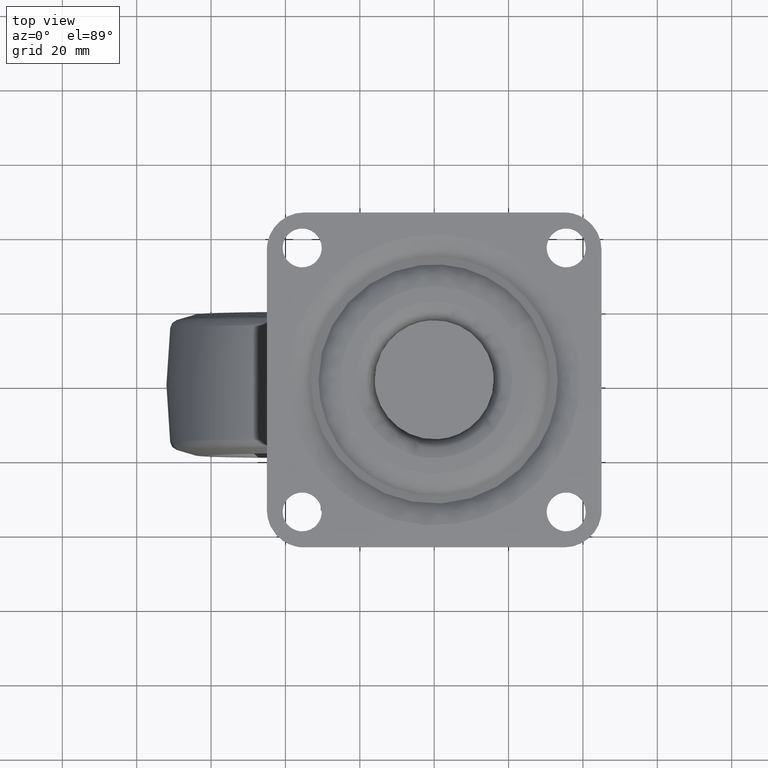
[diagram: clean part render]
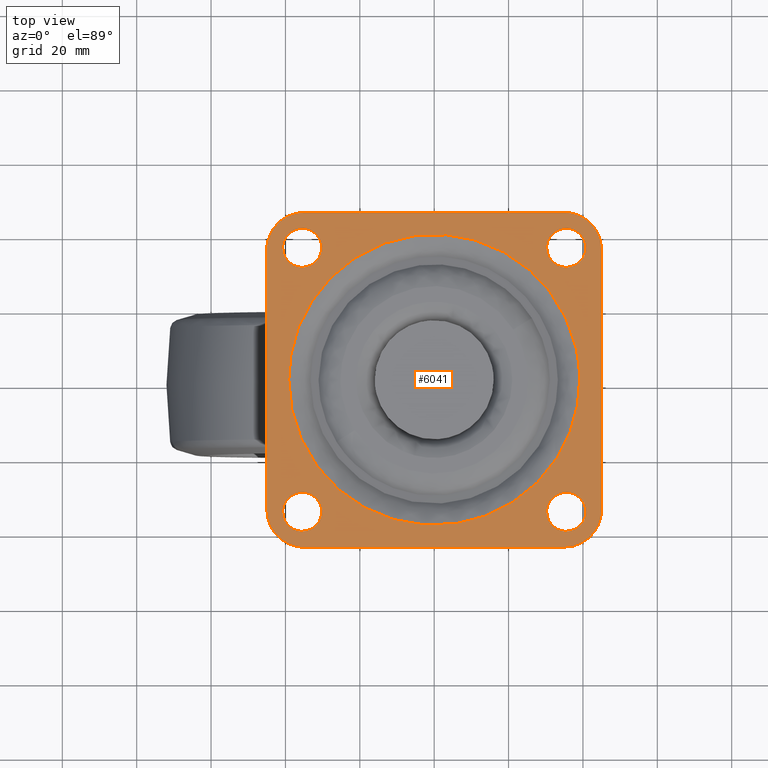
[diagram: same view with one face highlighted and labeled with its STEP entity id]
A machine part, top view. The second image highlights one B-rep face of the part: STEP entity #6041.
In plain terms, the highlighted face is a freeform B-spline surface patch.
Its self-contained STEP definition (entity closure, byte-faithful):
#4381=CARTESIAN_POINT('',(-35.820504832809881,30.259792308300600,-8.326673E-017));
#4382=VERTEX_POINT('',#4381);
#4388=CARTESIAN_POINT('',(-30.250000000000000,35.500000000000000,0.0));
#4389=VERTEX_POINT('',#4388);
#4390=CARTESIAN_POINT('',(-35.820504832809881,30.259792308300590,0.0));
#4391=CARTESIAN_POINT('',(-35.660402007443885,30.249999999999993,0.0));
#4392=CARTESIAN_POINT('',(-35.500000000000000,30.250000000000000,0.0));
#4393=CARTESIAN_POINT('',(-30.249999999999986,30.249999999999986,0.0));
#4394=CARTESIAN_POINT('',(-30.250000000000000,35.500000000000000,0.0));
#4402=(BOUNDED_CURVE()B_SPLINE_CURVE(2,(#4390,#4391,#4392,#4393,#4394),.UNSPECIFIED.,.F.,.U.)B_SPLINE_CURVE_WITH_KNOTS((3,2,3),(0.239332962233674,0.250000000000000,0.500000000000000),.UNSPECIFIED.)CURVE()GEOMETRIC_REPRESENTATION_ITEM()RATIONAL_B_SPLINE_CURVE((0.976072041655426,0.987502787893665,1.0,0.707106781186547,1.0))REPRESENTATION_ITEM(''));
#4403=EDGE_CURVE('',#4382,#4389,#4402,.T.);
#4405=CARTESIAN_POINT('',(-35.179495167190119,40.740207691699403,-8.326673E-017));
#4406=VERTEX_POINT('',#4405);
#4407=CARTESIAN_POINT('',(-30.250000000000000,35.500000000000000,0.0));
#4408=CARTESIAN_POINT('',(-30.249999999999989,40.438706851017059,0.0));
#4409=CARTESIAN_POINT('',(-35.179495167190112,40.740207691699389,0.0));
#4417=(BOUNDED_CURVE()B_SPLINE_CURVE(2,(#4407,#4408,#4409),.UNSPECIFIED.,.F.,.U.)B_SPLINE_CURVE_WITH_KNOTS((3,3),(0.500000000000000,0.739332962233674),.UNSPECIFIED.)CURVE()GEOMETRIC_REPRESENTATION_ITEM()RATIONAL_B_SPLINE_CURVE((1.0,0.719603993292882,0.976072041655426))REPRESENTATION_ITEM(''));
#4418=EDGE_CURVE('',#4389,#4406,#4417,.T.);
#4492=CARTESIAN_POINT('',(-40.749999999999993,35.500000000000000,0.0));
#4493=VERTEX_POINT('',#4492);
#4494=CARTESIAN_POINT('',(-35.179495167190112,40.740207691699389,0.0));
#4495=CARTESIAN_POINT('',(-35.339597992556115,40.749999999999993,0.0));
#4496=CARTESIAN_POINT('',(-35.500000000000000,40.749999999999993,0.0));
#4497=CARTESIAN_POINT('',(-40.749999999999986,40.749999999999986,0.0));
#4498=CARTESIAN_POINT('',(-40.749999999999993,35.500000000000000,0.0));
#4506=(BOUNDED_CURVE()B_SPLINE_CURVE(2,(#4494,#4495,#4496,#4497,#4498),.UNSPECIFIED.,.F.,.U.)B_SPLINE_CURVE_WITH_KNOTS((3,2,3),(0.739332962233674,0.750000000000000,1.0),.UNSPECIFIED.)CURVE()GEOMETRIC_REPRESENTATION_ITEM()RATIONAL_B_SPLINE_CURVE((0.976072041655426,0.987502787893665,1.0,0.707106781186547,1.0))REPRESENTATION_ITEM(''));
#4507=EDGE_CURVE('',#4406,#4493,#4506,.T.);
#4509=CARTESIAN_POINT('',(-40.749999999999993,35.500000000000000,0.0));
#4510=CARTESIAN_POINT('',(-40.749999999999993,30.561293148982926,0.0));
#4511=CARTESIAN_POINT('',(-35.820504832809881,30.259792308300600,0.0));
#4519=(BOUNDED_CURVE()B_SPLINE_CURVE(2,(#4509,#4510,#4511),.UNSPECIFIED.,.F.,.U.)B_SPLINE_CURVE_WITH_KNOTS((3,3),(0.0,0.239332962233674),.UNSPECIFIED.)CURVE()GEOMETRIC_REPRESENTATION_ITEM()RATIONAL_B_SPLINE_CURVE((1.0,0.719603993292883,0.976072041655426))REPRESENTATION_ITEM(''));
#4520=EDGE_CURVE('',#4493,#4382,#4519,.T.);
#4563=CARTESIAN_POINT('',(35.179495167190119,30.259792308300600,-8.326673E-017));
#4564=VERTEX_POINT('',#4563);
#4570=CARTESIAN_POINT('',(40.749999999999993,35.500000000000000,0.0));
#4571=VERTEX_POINT('',#4570);
#4572=CARTESIAN_POINT('',(35.179495167190119,30.259792308300600,0.0));
#4573=CARTESIAN_POINT('',(35.339597992556108,30.249999999999989,0.0));
#4574=CARTESIAN_POINT('',(35.500000000000000,30.250000000000000,0.0));
#4575=CARTESIAN_POINT('',(40.749999999999986,30.249999999999986,0.0));
#4576=CARTESIAN_POINT('',(40.749999999999993,35.500000000000000,0.0));
#4584=(BOUNDED_CURVE()B_SPLINE_CURVE(2,(#4572,#4573,#4574,#4575,#4576),.UNSPECIFIED.,.F.,.U.)B_SPLINE_CURVE_WITH_KNOTS((3,2,3),(0.239332962233675,0.250000000000000,0.500000000000000),.UNSPECIFIED.)CURVE()GEOMETRIC_REPRESENTATION_ITEM()RATIONAL_B_SPLINE_CURVE((0.976072041655426,0.987502787893665,1.0,0.707106781186547,1.0))REPRESENTATION_ITEM(''));
#4585=EDGE_CURVE('',#4564,#4571,#4584,.T.);
#4587=CARTESIAN_POINT('',(35.820504832809867,40.740207691699403,-8.326673E-017));
#4588=VERTEX_POINT('',#4587);
#4589=CARTESIAN_POINT('',(40.749999999999993,35.500000000000000,0.0));
#4590=CARTESIAN_POINT('',(40.749999999999986,40.438706851017052,0.0));
#4591=CARTESIAN_POINT('',(35.820504832809874,40.740207691699396,0.0));
#4599=(BOUNDED_CURVE()B_SPLINE_CURVE(2,(#4589,#4590,#4591),.UNSPECIFIED.,.F.,.U.)B_SPLINE_CURVE_WITH_KNOTS((3,3),(0.500000000000000,0.739332962233675),.UNSPECIFIED.)CURVE()GEOMETRIC_REPRESENTATION_ITEM()RATIONAL_B_SPLINE_CURVE((1.0,0.719603993292882,0.976072041655427))REPRESENTATION_ITEM(''));
#4600=EDGE_CURVE('',#4571,#4588,#4599,.T.);
#4674=CARTESIAN_POINT('',(30.250000000000000,35.500000000000000,0.0));
#4675=VERTEX_POINT('',#4674);
#4676=CARTESIAN_POINT('',(35.820504832809874,40.740207691699396,0.0));
#4677=CARTESIAN_POINT('',(35.660402007443885,40.749999999999993,0.0));
#4678=CARTESIAN_POINT('',(35.500000000000000,40.749999999999993,0.0));
#4679=CARTESIAN_POINT('',(30.249999999999986,40.749999999999986,0.0));
#4680=CARTESIAN_POINT('',(30.250000000000000,35.500000000000000,0.0));
#4688=(BOUNDED_CURVE()B_SPLINE_CURVE(2,(#4676,#4677,#4678,#4679,#4680),.UNSPECIFIED.,.F.,.U.)B_SPLINE_CURVE_WITH_KNOTS((3,2,3),(0.739332962233675,0.750000000000000,1.0),.UNSPECIFIED.)CURVE()GEOMETRIC_REPRESENTATION_ITEM()RATIONAL_B_SPLINE_CURVE((0.976072041655427,0.987502787893665,1.0,0.707106781186547,1.0))REPRESENTATION_ITEM(''));
#4689=EDGE_CURVE('',#4588,#4675,#4688,.T.);
#4691=CARTESIAN_POINT('',(30.250000000000000,35.500000000000000,0.0));
#4692=CARTESIAN_POINT('',(30.249999999999996,30.561293148982923,0.0));
#4693=CARTESIAN_POINT('',(35.179495167190112,30.259792308300597,0.0));
#4701=(BOUNDED_CURVE()B_SPLINE_CURVE(2,(#4691,#4692,#4693),.UNSPECIFIED.,.F.,.U.)B_SPLINE_CURVE_WITH_KNOTS((3,3),(0.0,0.239332962233675),.UNSPECIFIED.)CURVE()GEOMETRIC_REPRESENTATION_ITEM()RATIONAL_B_SPLINE_CURVE((1.0,0.719603993292882,0.976072041655427))REPRESENTATION_ITEM(''));
#4702=EDGE_CURVE('',#4675,#4564,#4701,.T.);
#4745=CARTESIAN_POINT('',(35.179495167190119,-40.740207691699403,-8.326673E-017));
#4746=VERTEX_POINT('',#4745);
#4752=CARTESIAN_POINT('',(40.749999999999993,-35.500000000000000,0.0));
#4753=VERTEX_POINT('',#4752);
#4754=CARTESIAN_POINT('',(35.179495167190112,-40.740207691699396,0.0));
#4755=CARTESIAN_POINT('',(35.339597992556122,-40.750000000000000,0.0));
#4756=CARTESIAN_POINT('',(35.500000000000000,-40.749999999999993,0.0));
#4757=CARTESIAN_POINT('',(40.749999999999986,-40.749999999999986,0.0));
#4758=CARTESIAN_POINT('',(40.749999999999993,-35.500000000000000,0.0));
#4766=(BOUNDED_CURVE()B_SPLINE_CURVE(2,(#4754,#4755,#4756,#4757,#4758),.UNSPECIFIED.,.F.,.U.)B_SPLINE_CURVE_WITH_KNOTS((3,2,3),(0.239332962233675,0.250000000000000,0.500000000000000),.UNSPECIFIED.)CURVE()GEOMETRIC_REPRESENTATION_ITEM()RATIONAL_B_SPLINE_CURVE((0.976072041655427,0.987502787893665,1.0,0.707106781186547,1.0))REPRESENTATION_ITEM(''));
#4767=EDGE_CURVE('',#4746,#4753,#4766,.T.);
#4769=CARTESIAN_POINT('',(35.820504832809867,-30.259792308300600,-8.326673E-017));
#4770=VERTEX_POINT('',#4769);
#4771=CARTESIAN_POINT('',(40.749999999999993,-35.500000000000000,0.0));
#4772=CARTESIAN_POINT('',(40.749999999999986,-30.561293148982926,0.0));
#4773=CARTESIAN_POINT('',(35.820504832809874,-30.259792308300607,0.0));
#4781=(BOUNDED_CURVE()B_SPLINE_CURVE(2,(#4771,#4772,#4773),.UNSPECIFIED.,.F.,.U.)B_SPLINE_CURVE_WITH_KNOTS((3,3),(0.500000000000000,0.739332962233675),.UNSPECIFIED.)CURVE()GEOMETRIC_REPRESENTATION_ITEM()RATIONAL_B_SPLINE_CURVE((1.0,0.719603993292882,0.976072041655427))REPRESENTATION_ITEM(''));
#4782=EDGE_CURVE('',#4753,#4770,#4781,.T.);
#4856=CARTESIAN_POINT('',(30.250000000000000,-35.500000000000000,0.0));
#4857=VERTEX_POINT('',#4856);
#4858=CARTESIAN_POINT('',(35.820504832809874,-30.259792308300607,0.0));
#4859=CARTESIAN_POINT('',(35.660402007443885,-30.249999999999996,0.0));
#4860=CARTESIAN_POINT('',(35.500000000000000,-30.250000000000000,0.0));
#4861=CARTESIAN_POINT('',(30.249999999999986,-30.249999999999986,0.0));
#4862=CARTESIAN_POINT('',(30.250000000000000,-35.500000000000000,0.0));
#4870=(BOUNDED_CURVE()B_SPLINE_CURVE(2,(#4858,#4859,#4860,#4861,#4862),.UNSPECIFIED.,.F.,.U.)B_SPLINE_CURVE_WITH_KNOTS((3,2,3),(0.739332962233675,0.750000000000000,1.0),.UNSPECIFIED.)CURVE()GEOMETRIC_REPRESENTATION_ITEM()RATIONAL_B_SPLINE_CURVE((0.976072041655427,0.987502787893665,1.0,0.707106781186547,1.0))REPRESENTATION_ITEM(''));
#4871=EDGE_CURVE('',#4770,#4857,#4870,.T.);
#4873=CARTESIAN_POINT('',(30.250000000000000,-35.500000000000000,0.0));
#4874=CARTESIAN_POINT('',(30.249999999999986,-40.438706851017052,0.0));
#4875=CARTESIAN_POINT('',(35.179495167190119,-40.740207691699382,0.0));
#4883=(BOUNDED_CURVE()B_SPLINE_CURVE(2,(#4873,#4874,#4875),.UNSPECIFIED.,.F.,.U.)B_SPLINE_CURVE_WITH_KNOTS((3,3),(0.0,0.239332962233674),.UNSPECIFIED.)CURVE()GEOMETRIC_REPRESENTATION_ITEM()RATIONAL_B_SPLINE_CURVE((1.0,0.719603993292883,0.976072041655426))REPRESENTATION_ITEM(''));
#4884=EDGE_CURVE('',#4857,#4746,#4883,.T.);
#4927=CARTESIAN_POINT('',(-35.820504832809867,-40.740207691699403,-8.326673E-017));
#4928=VERTEX_POINT('',#4927);
#4934=CARTESIAN_POINT('',(-30.250000000000000,-35.500000000000000,0.0));
#4935=VERTEX_POINT('',#4934);
#4936=CARTESIAN_POINT('',(-35.820504832809867,-40.740207691699403,0.0));
#4937=CARTESIAN_POINT('',(-35.660402007443878,-40.749999999999993,0.0));
#4938=CARTESIAN_POINT('',(-35.500000000000000,-40.749999999999993,0.0));
#4939=CARTESIAN_POINT('',(-30.249999999999986,-40.749999999999986,0.0));
#4940=CARTESIAN_POINT('',(-30.250000000000000,-35.500000000000000,0.0));
#4948=(BOUNDED_CURVE()B_SPLINE_CURVE(2,(#4936,#4937,#4938,#4939,#4940),.UNSPECIFIED.,.F.,.U.)B_SPLINE_CURVE_WITH_KNOTS((3,2,3),(0.239332962233675,0.250000000000000,0.500000000000000),.UNSPECIFIED.)CURVE()GEOMETRIC_REPRESENTATION_ITEM()RATIONAL_B_SPLINE_CURVE((0.976072041655427,0.987502787893665,1.0,0.707106781186547,1.0))REPRESENTATION_ITEM(''));
#4949=EDGE_CURVE('',#4928,#4935,#4948,.T.);
#4951=CARTESIAN_POINT('',(-35.179495167190119,-30.259792308300600,-8.326673E-017));
#4952=VERTEX_POINT('',#4951);
#4953=CARTESIAN_POINT('',(-30.250000000000000,-35.500000000000000,0.0));
#4954=CARTESIAN_POINT('',(-30.249999999999989,-30.561293148982934,0.0));
#4955=CARTESIAN_POINT('',(-35.179495167190112,-30.259792308300593,0.0));
#4963=(BOUNDED_CURVE()B_SPLINE_CURVE(2,(#4953,#4954,#4955),.UNSPECIFIED.,.F.,.U.)B_SPLINE_CURVE_WITH_KNOTS((3,3),(0.500000000000000,0.739332962233674),.UNSPECIFIED.)CURVE()GEOMETRIC_REPRESENTATION_ITEM()RATIONAL_B_SPLINE_CURVE((1.0,0.719603993292882,0.976072041655426))REPRESENTATION_ITEM(''));
#4964=EDGE_CURVE('',#4935,#4952,#4963,.T.);
#5038=CARTESIAN_POINT('',(-40.749999999999993,-35.500000000000000,0.0));
#5039=VERTEX_POINT('',#5038);
#5040=CARTESIAN_POINT('',(-35.179495167190112,-30.259792308300593,0.0));
#5041=CARTESIAN_POINT('',(-35.339597992556115,-30.249999999999993,0.0));
#5042=CARTESIAN_POINT('',(-35.500000000000000,-30.250000000000000,0.0));
#5043=CARTESIAN_POINT('',(-40.749999999999986,-30.249999999999986,0.0));
#5044=CARTESIAN_POINT('',(-40.749999999999993,-35.500000000000000,0.0));
#5052=(BOUNDED_CURVE()B_SPLINE_CURVE(2,(#5040,#5041,#5042,#5043,#5044),.UNSPECIFIED.,.F.,.U.)B_SPLINE_CURVE_WITH_KNOTS((3,2,3),(0.739332962233674,0.750000000000000,1.0),.UNSPECIFIED.)CURVE()GEOMETRIC_REPRESENTATION_ITEM()RATIONAL_B_SPLINE_CURVE((0.976072041655426,0.987502787893665,1.0,0.707106781186547,1.0))REPRESENTATION_ITEM(''));
#5053=EDGE_CURVE('',#4952,#5039,#5052,.T.);
#5055=CARTESIAN_POINT('',(-40.749999999999993,-35.500000000000000,0.0));
#5056=CARTESIAN_POINT('',(-40.749999999999993,-40.438706851017066,0.0));
#5057=CARTESIAN_POINT('',(-35.820504832809874,-40.740207691699389,0.0));
#5065=(BOUNDED_CURVE()B_SPLINE_CURVE(2,(#5055,#5056,#5057),.UNSPECIFIED.,.F.,.U.)B_SPLINE_CURVE_WITH_KNOTS((3,3),(0.0,0.239332962233675),.UNSPECIFIED.)CURVE()GEOMETRIC_REPRESENTATION_ITEM()RATIONAL_B_SPLINE_CURVE((1.0,0.719603993292882,0.976072041655427))REPRESENTATION_ITEM(''));
#5066=EDGE_CURVE('',#5039,#4928,#5065,.T.);
#5475=CARTESIAN_POINT('',(-33.037517744500462,20.966246303781841,-1.218429E-015));
#5476=VERTEX_POINT('',#5475);
#5490=CARTESIAN_POINT('',(-39.128775382679599,0.0,0.0));
#5491=VERTEX_POINT('',#5490);
#5492=CARTESIAN_POINT('',(-39.128775382679599,0.0,0.0));
#5493=CARTESIAN_POINT('',(-39.128775381820979,11.367960119229565,-6.092146E-016));
#5494=CARTESIAN_POINT('',(-33.037517744500462,20.966246303781844,-1.218429E-015));
#5502=(BOUNDED_CURVE()B_SPLINE_CURVE(2,(#5492,#5493,#5494),.UNSPECIFIED.,.F.,.U.)B_SPLINE_CURVE_WITH_KNOTS((3,3),(0.0,0.091683542668933),.UNSPECIFIED.)CURVE()GEOMETRIC_REPRESENTATION_ITEM()RATIONAL_B_SPLINE_CURVE((1.0,0.892586048301903,0.863956829593815))REPRESENTATION_ITEM(''));
#5503=EDGE_CURVE('',#5491,#5476,#5502,.T.);
#5505=CARTESIAN_POINT('',(33.037517744500462,-20.966246303781841,-1.218429E-015));
#5506=VERTEX_POINT('',#5505);
#5507=CARTESIAN_POINT('',(33.037517744500462,-20.966246303781841,-1.218429E-015));
#5508=CARTESIAN_POINT('',(31.525917849319011,-23.349180385841450,-1.205673E-015));
#5509=CARTESIAN_POINT('',(29.136880868139549,-26.340798232449501,-1.182009E-015));
#5510=CARTESIAN_POINT('',(25.201071266846011,-30.016219710032829,-1.137356E-015));
#5511=CARTESIAN_POINT('',(21.702758269776499,-32.692946745359578,-1.094997E-015));
#5512=CARTESIAN_POINT('',(16.799310999147149,-35.515516722632427,-1.031420E-015));
#5513=CARTESIAN_POINT('',(11.695219141993130,-37.473617704248248,-9.608094E-016));
#5514=CARTESIAN_POINT('',(6.957898080750200,-38.572369355197822,-8.920218E-016));
#5515=CARTESIAN_POINT('',(2.982714632548754,-39.081228473422492,-8.324321E-016));
#5516=CARTESIAN_POINT('',(-2.075657546397221,-39.216550015652423,-7.542879E-016));
#5517=CARTESIAN_POINT('',(-6.983695029558897,-38.628655516775638,-6.752131E-016));
#5518=CARTESIAN_POINT('',(-11.750679356881250,-37.385397239282462,-5.953700E-016));
#5519=CARTESIAN_POINT('',(-15.453757614804060,-36.030941705714170,-5.315883E-016));
#5520=CARTESIAN_POINT('',(-19.048319398496169,-34.255163230758292,-4.675904E-016));
#5521=CARTESIAN_POINT('',(-22.778674936661851,-31.919208267945670,-3.989443E-016));
#5522=CARTESIAN_POINT('',(-26.071300477544220,-29.296217602060111,-3.358152E-016));
#5523=CARTESIAN_POINT('',(-29.313459712716849,-26.034422316690112,-2.705822E-016));
#5524=CARTESIAN_POINT('',(-32.515016029591472,-22.028469084072871,-2.026153E-016));
#5525=CARTESIAN_POINT('',(-35.259404745363632,-17.299047423536940,-1.384938E-016));
#5526=CARTESIAN_POINT('',(-37.197143112040720,-12.409408042528080,-8.620662E-017));
#5527=CARTESIAN_POINT('',(-38.690093478858273,-6.890427820044219,-3.799788E-017));
#5528=CARTESIAN_POINT('',(-39.129198489827338,-2.756275643681971,-1.246102E-017));
#5529=CARTESIAN_POINT('',(-39.128775382679599,0.0,0.0));
#5530=B_SPLINE_CURVE_WITH_KNOTS('',3,(#5507,#5508,#5509,#5510,#5511,#5512,#5513,#5514,#5515,#5516,#5517,#5518,#5519,#5520,#5521,#5522,#5523,#5524,#5525,#5526,#5527,#5528,#5529),.UNSPECIFIED.,.F.,.U.,(4,1,1,1,1,1,1,1,1,1,1,1,1,1,1,1,1,1,1,1,4),(0.000000152351575,8.465624492730356,11.418757066901360,16.143755376384561,21.656267139549069,28.350062460314629,32.484376073067210,36.225080733774320,40.359255074946716,47.643652242463403,50.990539708056282,55.124974424749247,59.456232481270384,62.999961557725250,68.315606194516590,72.056245130557087,76.781243488480939,83.671909129164760,88.396924546222181,92.531265874403900,100.799978417197810),.UNSPECIFIED.);
#5531=EDGE_CURVE('',#5506,#5491,#5530,.T.);
#5580=CARTESIAN_POINT('',(39.128775382679599,0.0,0.0));
#5581=VERTEX_POINT('',#5580);
#5582=CARTESIAN_POINT('',(39.128775382679599,0.0,0.0));
#5583=CARTESIAN_POINT('',(39.128775381820979,-11.367960119229565,-6.092146E-016));
#5584=CARTESIAN_POINT('',(33.037517744500462,-20.966246303781844,-1.218429E-015));
#5592=(BOUNDED_CURVE()B_SPLINE_CURVE(2,(#5582,#5583,#5584),.UNSPECIFIED.,.F.,.U.)B_SPLINE_CURVE_WITH_KNOTS((3,3),(0.500000000000000,0.591683542668933),.UNSPECIFIED.)CURVE()GEOMETRIC_REPRESENTATION_ITEM()RATIONAL_B_SPLINE_CURVE((1.0,0.892586048301903,0.863956829593815))REPRESENTATION_ITEM(''));
#5593=EDGE_CURVE('',#5581,#5506,#5592,.T.);
#5595=CARTESIAN_POINT('',(-33.037517744500462,20.966246303781841,-1.218429E-015));
#5596=CARTESIAN_POINT('',(-32.263937565216999,22.185253458107020,-1.211899E-015));
#5597=CARTESIAN_POINT('',(-30.390501246981700,24.804835649007249,-1.194580E-015));
#5598=CARTESIAN_POINT('',(-26.915568222930780,28.579439612124439,-1.157551E-015));
#5599=CARTESIAN_POINT('',(-23.096303711843031,31.704720197397311,-1.112224E-015));
#5600=CARTESIAN_POINT('',(-18.990201647991729,34.308031572883962,-1.060069E-015));
#5601=CARTESIAN_POINT('',(-14.966978857095141,36.260669601228848,-1.006262E-015));
#5602=CARTESIAN_POINT('',(-9.989507894285092,37.957700429842120,-9.364421E-016));
#5603=CARTESIAN_POINT('',(-4.691893286554783,38.991616897046072,-8.586377E-016));
#5604=CARTESIAN_POINT('',(1.288934547517345,39.256721773172231,-7.667185E-016));
#5605=CARTESIAN_POINT('',(6.656882828111353,38.682065607538362,-6.805430E-016));
#5606=CARTESIAN_POINT('',(12.143972546717070,37.324818847151647,-5.889726E-016));
#5607=CARTESIAN_POINT('',(17.038531511939130,35.379326940152112,-5.039667E-016));
#5608=CARTESIAN_POINT('',(21.194597455046871,32.976029550639133,-4.283880E-016));
#5609=CARTESIAN_POINT('',(24.543992525022190,30.547249281499539,-3.652534E-016));
#5610=CARTESIAN_POINT('',(27.309950460609670,28.118969126183089,-3.112049E-016));
#5611=CARTESIAN_POINT('',(30.390680372161789,24.793312738542681,-2.481964E-016));
#5612=CARTESIAN_POINT('',(33.022391564327158,21.175715994057470,-1.908584E-016));
#5613=CARTESIAN_POINT('',(35.346112813367093,16.978722610201579,-1.356948E-016));
#5614=CARTESIAN_POINT('',(37.232052832537377,12.422782084961661,-8.572359E-017));
#5615=CARTESIAN_POINT('',(38.735267585420416,6.693635137704706,-3.640438E-017));
#5616=CARTESIAN_POINT('',(39.129023853470677,2.362510092094396,-1.068260E-017));
#5617=CARTESIAN_POINT('',(39.128775382679599,0.0,0.0));
#5618=B_SPLINE_CURVE_WITH_KNOTS('',3,(#5595,#5596,#5597,#5598,#5599,#5600,#5601,#5602,#5603,#5604,#5605,#5606,#5607,#5608,#5609,#5610,#5611,#5612,#5613,#5614,#5615,#5616,#5617),.UNSPECIFIED.,.F.,.U.,(4,1,1,1,1,1,1,1,1,1,1,1,1,1,1,1,1,1,1,1,4),(0.000000152863365,4.331247700630271,9.646876046994436,15.356275774932341,19.096908876827172,24.215677390259440,28.743752870355621,34.846953874841802,40.359255075251738,46.659290468282521,50.990539708305988,57.290605158923299,62.409333296653010,65.362486653900461,69.693737690721562,73.434366060491953,78.946863580818956,83.081280632736707,87.806298396261184,93.712498107768624,100.799978417197000),.UNSPECIFIED.);
#5619=EDGE_CURVE('',#5476,#5581,#5618,.T.);
#5766=CARTESIAN_POINT('',(45.0,35.0,0.0));
#5767=VERTEX_POINT('',#5766);
#5768=CARTESIAN_POINT('',(35.0,45.0,0.0));
#5769=VERTEX_POINT('',#5768);
#5770=CARTESIAN_POINT('',(45.000000000000007,35.0,0.0));
#5771=CARTESIAN_POINT('',(45.000000000000014,45.000000000000014,0.0));
#5772=CARTESIAN_POINT('',(35.0,45.000000000000007,0.0));
#5780=(BOUNDED_CURVE()B_SPLINE_CURVE(2,(#5770,#5771,#5772),.UNSPECIFIED.,.F.,.U.)CURVE()GEOMETRIC_REPRESENTATION_ITEM()QUASI_UNIFORM_CURVE()RATIONAL_B_SPLINE_CURVE((1.0,0.707106781186548,1.0))REPRESENTATION_ITEM(''));
#5781=EDGE_CURVE('',#5767,#5769,#5780,.T.);
#5802=CARTESIAN_POINT('',(45.0,-35.0,0.0));
#5803=VERTEX_POINT('',#5802);
#5804=CARTESIAN_POINT('',(45.0,-35.0,0.0));
#5805=CARTESIAN_POINT('',(45.0,35.0,0.0));
#5806=QUASI_UNIFORM_CURVE('',1,(#5804,#5805),.UNSPECIFIED.,.F.,.U.);
#5807=EDGE_CURVE('',#5803,#5767,#5806,.T.);
#5833=CARTESIAN_POINT('',(35.0,-45.0,0.0));
#5834=VERTEX_POINT('',#5833);
#5835=CARTESIAN_POINT('',(35.0,-45.000000000000007,0.0));
#5836=CARTESIAN_POINT('',(45.000000000000014,-45.000000000000014,0.0));
#5837=CARTESIAN_POINT('',(45.000000000000007,-35.0,0.0));
#5845=(BOUNDED_CURVE()B_SPLINE_CURVE(2,(#5835,#5836,#5837),.UNSPECIFIED.,.F.,.U.)CURVE()GEOMETRIC_REPRESENTATION_ITEM()QUASI_UNIFORM_CURVE()RATIONAL_B_SPLINE_CURVE((1.0,0.707106781186548,1.0))REPRESENTATION_ITEM(''));
#5846=EDGE_CURVE('',#5834,#5803,#5845,.T.);
#5863=CARTESIAN_POINT('',(-35.0,-45.0,0.0));
#5864=VERTEX_POINT('',#5863);
#5865=CARTESIAN_POINT('',(-35.0,-45.0,0.0));
#5866=CARTESIAN_POINT('',(35.0,-45.0,0.0));
#5867=QUASI_UNIFORM_CURVE('',1,(#5865,#5866),.UNSPECIFIED.,.F.,.U.);
#5868=EDGE_CURVE('',#5864,#5834,#5867,.T.);
#5894=CARTESIAN_POINT('',(-45.0,-35.0,0.0));
#5895=VERTEX_POINT('',#5894);
#5896=CARTESIAN_POINT('',(-45.000000000000007,-35.0,0.0));
#5897=CARTESIAN_POINT('',(-45.000000000000014,-45.000000000000014,0.0));
#5898=CARTESIAN_POINT('',(-35.0,-45.000000000000007,0.0));
#5906=(BOUNDED_CURVE()B_SPLINE_CURVE(2,(#5896,#5897,#5898),.UNSPECIFIED.,.F.,.U.)CURVE()GEOMETRIC_REPRESENTATION_ITEM()QUASI_UNIFORM_CURVE()RATIONAL_B_SPLINE_CURVE((1.0,0.707106781186548,1.0))REPRESENTATION_ITEM(''));
#5907=EDGE_CURVE('',#5895,#5864,#5906,.T.);
#5924=CARTESIAN_POINT('',(-45.0,35.0,0.0));
#5925=VERTEX_POINT('',#5924);
#5926=CARTESIAN_POINT('',(-45.0,35.0,0.0));
#5927=CARTESIAN_POINT('',(-45.0,-35.0,0.0));
#5928=QUASI_UNIFORM_CURVE('',1,(#5926,#5927),.UNSPECIFIED.,.F.,.U.);
#5929=EDGE_CURVE('',#5925,#5895,#5928,.T.);
#5955=CARTESIAN_POINT('',(-35.0,45.0,0.0));
#5956=VERTEX_POINT('',#5955);
#5957=CARTESIAN_POINT('',(-35.0,45.000000000000007,0.0));
#5958=CARTESIAN_POINT('',(-45.000000000000014,45.000000000000014,0.0));
#5959=CARTESIAN_POINT('',(-45.000000000000007,35.0,0.0));
#5967=(BOUNDED_CURVE()B_SPLINE_CURVE(2,(#5957,#5958,#5959),.UNSPECIFIED.,.F.,.U.)CURVE()GEOMETRIC_REPRESENTATION_ITEM()QUASI_UNIFORM_CURVE()RATIONAL_B_SPLINE_CURVE((1.0,0.707106781186548,1.0))REPRESENTATION_ITEM(''));
#5968=EDGE_CURVE('',#5956,#5925,#5967,.T.);
#5985=CARTESIAN_POINT('',(35.0,45.0,0.0));
#5986=CARTESIAN_POINT('',(-35.0,45.0,0.0));
#5987=QUASI_UNIFORM_CURVE('',1,(#5985,#5986),.UNSPECIFIED.,.F.,.U.);
#5988=EDGE_CURVE('',#5769,#5956,#5987,.T.);
#5996=CARTESIAN_POINT('',(-49.495499825562533,49.495499825562533,0.0));
#5997=CARTESIAN_POINT('',(49.495502239550653,49.495499825562533,0.0));
#5998=CARTESIAN_POINT('',(-49.495499825562533,-49.495502239550653,0.0));
#5999=CARTESIAN_POINT('',(49.495502239550653,-49.495502239550653,0.0));
#6000=B_SPLINE_SURFACE_WITH_KNOTS('',1,1,((#5996,#5998),(#5997,#5999)),.UNSPECIFIED.,.F.,.F.,.U.,(2,2),(2,2),(0.0,98.991002065113179),(0.0,98.991002065113179),.UNSPECIFIED.);
#6001=ORIENTED_EDGE('',*,*,#5988,.T.);
#6002=ORIENTED_EDGE('',*,*,#5968,.T.);
#6003=ORIENTED_EDGE('',*,*,#5929,.T.);
#6004=ORIENTED_EDGE('',*,*,#5907,.T.);
#6005=ORIENTED_EDGE('',*,*,#5868,.T.);
#6006=ORIENTED_EDGE('',*,*,#5846,.T.);
#6007=ORIENTED_EDGE('',*,*,#5807,.T.);
#6008=ORIENTED_EDGE('',*,*,#5781,.T.);
#6009=EDGE_LOOP('',(#6001,#6002,#6003,#6004,#6005,#6006,#6007,#6008));
#6010=FACE_OUTER_BOUND('',#6009,.T.);
#6011=ORIENTED_EDGE('',*,*,#5503,.T.);
#6012=ORIENTED_EDGE('',*,*,#5619,.T.);
#6013=ORIENTED_EDGE('',*,*,#5593,.T.);
#6014=ORIENTED_EDGE('',*,*,#5531,.T.);
#6015=EDGE_LOOP('',(#6011,#6012,#6013,#6014));
#6016=FACE_BOUND('',#6015,.T.);
#6017=ORIENTED_EDGE('',*,*,#4964,.F.);
#6018=ORIENTED_EDGE('',*,*,#4949,.F.);
#6019=ORIENTED_EDGE('',*,*,#5066,.F.);
#6020=ORIENTED_EDGE('',*,*,#5053,.F.);
#6021=EDGE_LOOP('',(#6017,#6018,#6019,#6020));
#6022=FACE_BOUND('',#6021,.T.);
#6023=ORIENTED_EDGE('',*,*,#4782,.F.);
#6024=ORIENTED_EDGE('',*,*,#4767,.F.);
#6025=ORIENTED_EDGE('',*,*,#4884,.F.);
#6026=ORIENTED_EDGE('',*,*,#4871,.F.);
#6027=EDGE_LOOP('',(#6023,#6024,#6025,#6026));
#6028=FACE_BOUND('',#6027,.T.);
#6029=ORIENTED_EDGE('',*,*,#4600,.F.);
#6030=ORIENTED_EDGE('',*,*,#4585,.F.);
#6031=ORIENTED_EDGE('',*,*,#4702,.F.);
#6032=ORIENTED_EDGE('',*,*,#4689,.F.);
#6033=EDGE_LOOP('',(#6029,#6030,#6031,#6032));
#6034=FACE_BOUND('',#6033,.T.);
#6035=ORIENTED_EDGE('',*,*,#4418,.F.);
#6036=ORIENTED_EDGE('',*,*,#4403,.F.);
#6037=ORIENTED_EDGE('',*,*,#4520,.F.);
#6038=ORIENTED_EDGE('',*,*,#4507,.F.);
#6039=EDGE_LOOP('',(#6035,#6036,#6037,#6038));
#6040=FACE_BOUND('',#6039,.T.);
#6041=ADVANCED_FACE('',(#6010,#6016,#6022,#6028,#6034,#6040),#6000,.F.);